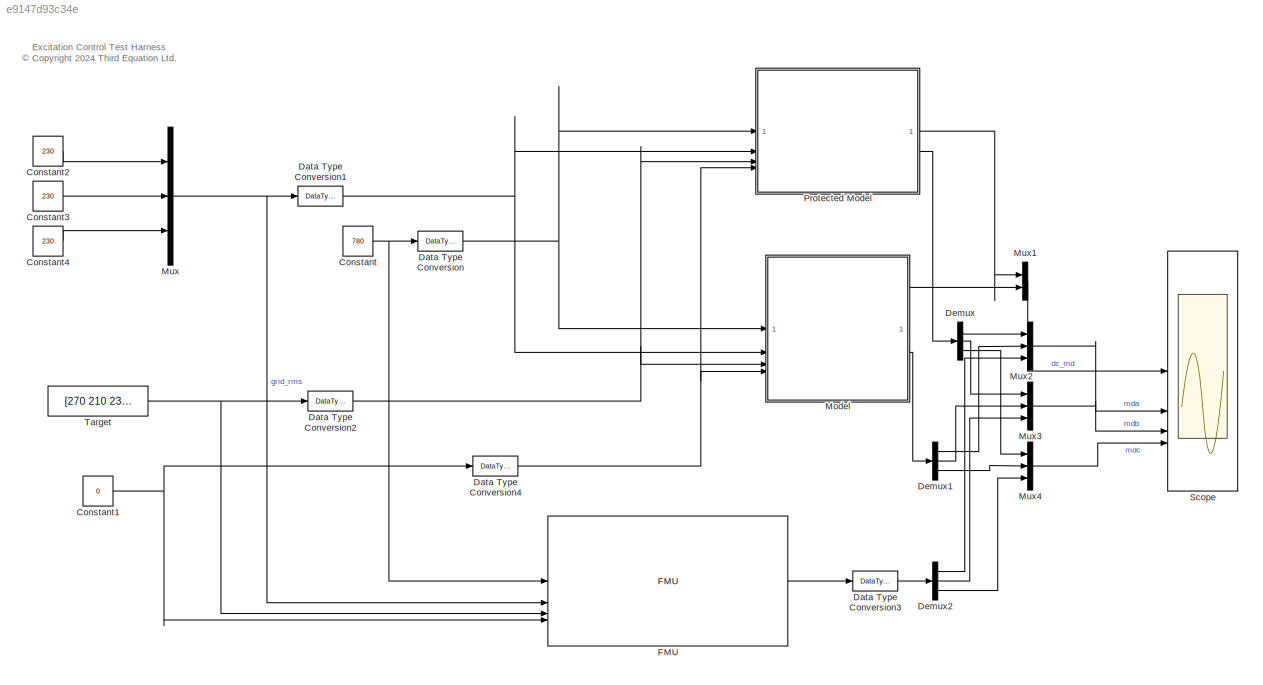
MODEL slx_e9147d93c34e
KIND model
CONFIG AbsTol = 1e-6
CONFIG EnableMultiTasking = off
CONFIG FixedStep = 2.6667e-04
CONFIG MaxStep = auto
CONFIG MinStep = auto
CONFIG RelTol = 1e-4
CONFIG SampleTimeConstraint = Unconstrained
CONFIG SolverName = FixedStepAuto
CONFIG StartTime = 0.0
CONFIG StopTime = inf
BLOCK [Constant] Constant
  Value = 780
BLOCK [Constant] Constant1
  OutDataTypeStr = int32
  Value = 0
BLOCK [Constant] Constant2
  Value = 230
BLOCK [Constant] Constant3
  Value = 230
BLOCK [Constant] Constant4
  Value = 230
BLOCK [DataTypeConversion] Data Type Conversion
  RndMeth = Floor
  SaturateOnIntegerOverflow = off
BLOCK [DataTypeConversion] Data Type Conversion1
  RndMeth = Floor
  SaturateOnIntegerOverflow = off
BLOCK [DataTypeConversion] Data Type Conversion2
  RndMeth = Floor
  SaturateOnIntegerOverflow = off
BLOCK [DataTypeConversion] Data Type Conversion3
  RndMeth = Floor
  SaturateOnIntegerOverflow = off
BLOCK [DataTypeConversion] Data Type Conversion4
  RndMeth = Floor
  SaturateOnIntegerOverflow = off
BLOCK [Demux] Demux
  Outputs = 3
BLOCK [Demux] Demux1
  Outputs = 3
BLOCK [Demux] Demux2
  Outputs = 3
BLOCK [FMU] FMU
  FMUCachedDialogLayout = {"Geometry":[-1314,614,433,389],"ParameterColumnsWidthConfig":"{\"columns\":[{\"name\":\"Parameter\",\"width\":181},{\"name\":\"Value\",\"width\":145},{\"name\":\"Unit\",\"width\":135},{\"name\":\"Description\",\"width\":190}]}","InputColumnsWidthConfig":"{\"columns\":[{\"name\":\"Name\",\"width\":111},{\"name\":\"Visibility\",\"width\":60},{\"name\":\"Start\",\"width\":103},{\"name\":\"Unit\",\"w...<+282ch>
  FMUCreateBusObject = off
  FMUInitializeEnumObject = off
  FMUMode = CoSimulation
  FMUName = EC_control.fmu
  MaskDisplay = if (exist([Simulink.fileGenControl('get','CacheFolder') '\slprj\_fmu\25bc88b116eb2d6cca0888ab3059811e\EC_control\model.png'],'file'))\n    image([Simulink.fileGenControl('get','CacheFolder') '\slprj\_fmu\25bc88b116eb2d6cca0888ab3059811e\EC_control\model.png']);\nelse\n    disp('EC_control');\nend\nport_label('output',1,'abc_md');\nport_label('input',1,'Vdc');\nport_label('input',2,'DT_VoltgeRMSAbc');\npor...<+71ch>
  MaskType = EC_control [Co-Simulation, v2.0]
BLOCK [ModelReference] Model
  ModelNameDialog = EC_core_control.slx
  ModelReferenceVersion = 1.40
BLOCK [Mux] Mux
  DisplayOption = bar
  Inputs = 3
BLOCK [Mux] Mux1
  DisplayOption = bar
  Inputs = 2
BLOCK [Mux] Mux2
  DisplayOption = bar
  Inputs = 3
BLOCK [Mux] Mux3
  DisplayOption = bar
  Inputs = 3
BLOCK [Mux] Mux4
  DisplayOption = bar
  Inputs = 3
BLOCK [ModelReference] Protected Model
  CopyOfModelProtected = on
  ModelNameDialog = EC_core_control_protected.slxp
  ModelReferenceVersion = 1.40
BLOCK [Scope] Scope
  Floating = off
  NumInputPorts = 4
  ScopeSpecificationString = Simulink.scopes.TimeScopeBlockCfg('CurrentConfiguration', extmgr.ConfigurationSet(extmgr.Configuration('Core','General UI',true),extmgr.Configuration('Core','Source UI',true),extmgr.Configuration('Sources','WiredSimulink',true),extmgr.Configuration('Visuals','Time Domain',true,'SerializedDisplays',{struct('MinYLimReal','290.00656','MaxYLimReal','490.00656','YLabelReal','','MinYLimMag','290.00656',...<+3475ch>
BLOCK [Constant] Target
  Value = [270 210 235]
ANNOTATION (root): Excitation Control Test Harness <copyright redacted>
NET Constant1:1 -> Data Type Conversion4:1, FMU:4
LINE Constant2:1 -> Mux:1
LINE Constant3:1 -> Mux:2
LINE Constant4:1 -> Mux:3
NET Constant:1 -> Data Type Conversion:1, FMU:1
NET Data Type Conversion1:1 -> Model:2, Protected Model:2
NET Data Type Conversion2:1 -> Model:3, Protected Model:3
LINE Data Type Conversion3:1 -> Demux2:1
NET Data Type Conversion4:1 -> Model:4, Protected Model:4
NET Data Type Conversion:1 -> Model:1, Protected Model:1
LINE Demux1:1 -> Mux2:2
LINE Demux1:2 -> Mux3:2
LINE Demux1:3 -> Mux4:2
LINE Demux2:1 -> Mux2:3
LINE Demux2:2 -> Mux3:3
LINE Demux2:3 -> Mux4:3
LINE Demux:1 -> Mux2:1
LINE Demux:2 -> Mux3:1
LINE Demux:3 -> Mux4:1
LINE FMU:1 -> Data Type Conversion3:1
LINE Model:1 -> Mux1:2
LINE Model:2 -> Demux1:1
LINE Mux1:1 -> Scope:1
LINE Mux2:1 -> Scope:2
LINE Mux3:1 -> Scope:3
LINE Mux4:1 -> Scope:4
NET Mux:1 -> Data Type Conversion1:1, FMU:2
LINE Protected Model:1 -> Mux1:1
LINE Protected Model:2 -> Demux:1
NET Target:1 -> Data Type Conversion2:1, FMU:3
note: NET lines group one-source signal fan-out (src -> all destinations, sorted); 1:1 wires keep LINE
